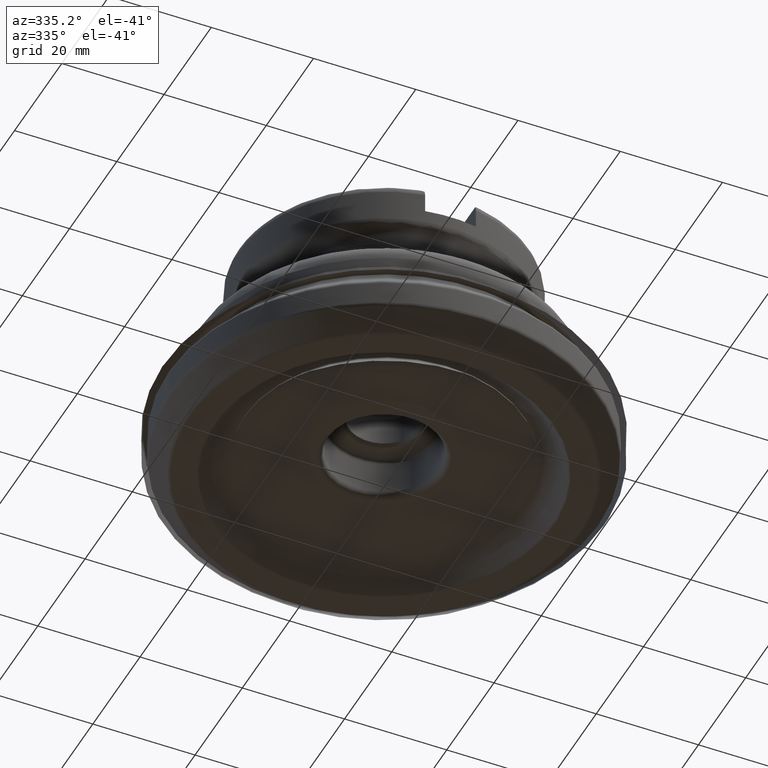
[diagram: clean part render]
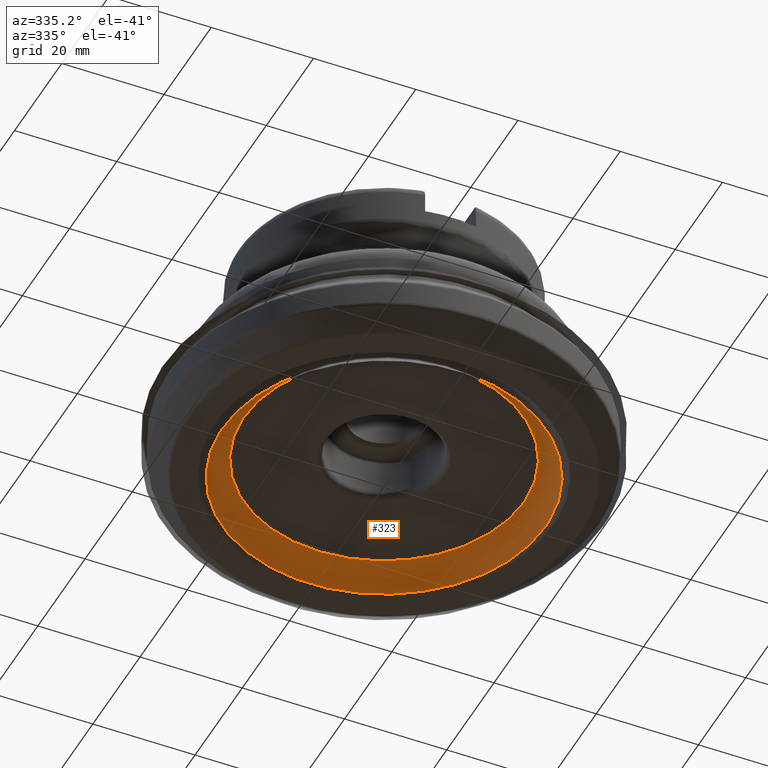
[diagram: same view with one face highlighted and labeled with its STEP entity id]
A machine part, auxiliary view. The second image highlights one B-rep face of the part: STEP entity #323.
In plain terms, the highlighted face is a SurfaceOfRevolution surface.
Its self-contained STEP definition (entity closure, byte-faithful):
#135=SURFACE_OF_REVOLUTION('',#232,#157);
#157=AXIS1_PLACEMENT('',#1923,#1379);
#232=LINE('',#1922,#260);
#260=VECTOR('',#1378,5.97815706176458);
#323=ADVANCED_FACE('',(#430,#431),#135,.F.);
#430=FACE_BOUND('',#546,.T.);
#431=FACE_BOUND('',#547,.T.);
#546=EDGE_LOOP('',(#740));
#547=EDGE_LOOP('',(#741));
#740=ORIENTED_EDGE('',*,*,#925,.T.);
#741=ORIENTED_EDGE('',*,*,#926,.F.);
#828=VERTEX_POINT('',#1914);
#829=VERTEX_POINT('',#1921);
#925=EDGE_CURVE('',#828,#828,#982,.T.);
#926=EDGE_CURVE('',#829,#829,#983,.T.);
#982=CIRCLE('',#1130,31.6088715415453);
#983=CIRCLE('',#1131,27.4266993007175);
#1130=AXIS2_PLACEMENT_3D('',#1913,#1373,#1374);
#1131=AXIS2_PLACEMENT_3D('',#1920,#1376,#1377);
#1373=DIRECTION('',(1.17145536458252E-15,0.,1.));
#1374=DIRECTION('',(1.,0.,-1.17136431592363E-15));
#1376=DIRECTION('',(1.17145536458252E-15,0.,1.));
#1377=DIRECTION('',(1.,0.,-1.17011471025722E-15));
#1378=DIRECTION('',(-0.0984102434476232,-0.704760211566389,-0.702586982641636));
#1379=DIRECTION('',(1.17145536458252E-15,0.,1.));
#1913=CARTESIAN_POINT('',(2.740582723435E-16,0.,0.233946832828041));
#1914=CARTESIAN_POINT('',(31.6088715415453,0.,0.233946832828004));
#1920=CARTESIAN_POINT('',(5.19437630730659E-15,0.,4.43412225881754));
#1921=CARTESIAN_POINT('',(27.4266993007175,0.,4.43412225881751));
#1922=CARTESIAN_POINT('',(1.61813706638243,-27.3789238670491,4.434122164611));
#1923=CARTESIAN_POINT('',(0.,0.,0.));